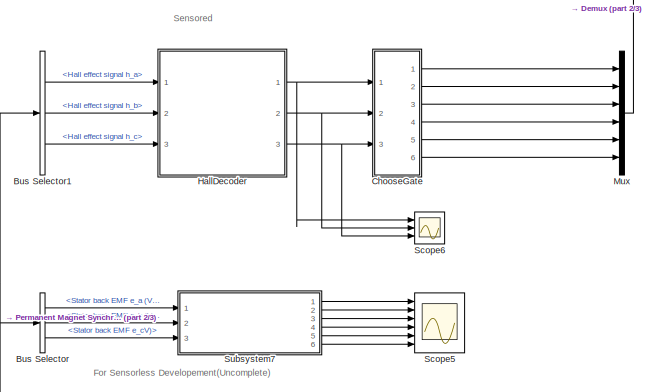
[diagram: root canvas - part 1/3, top right region]
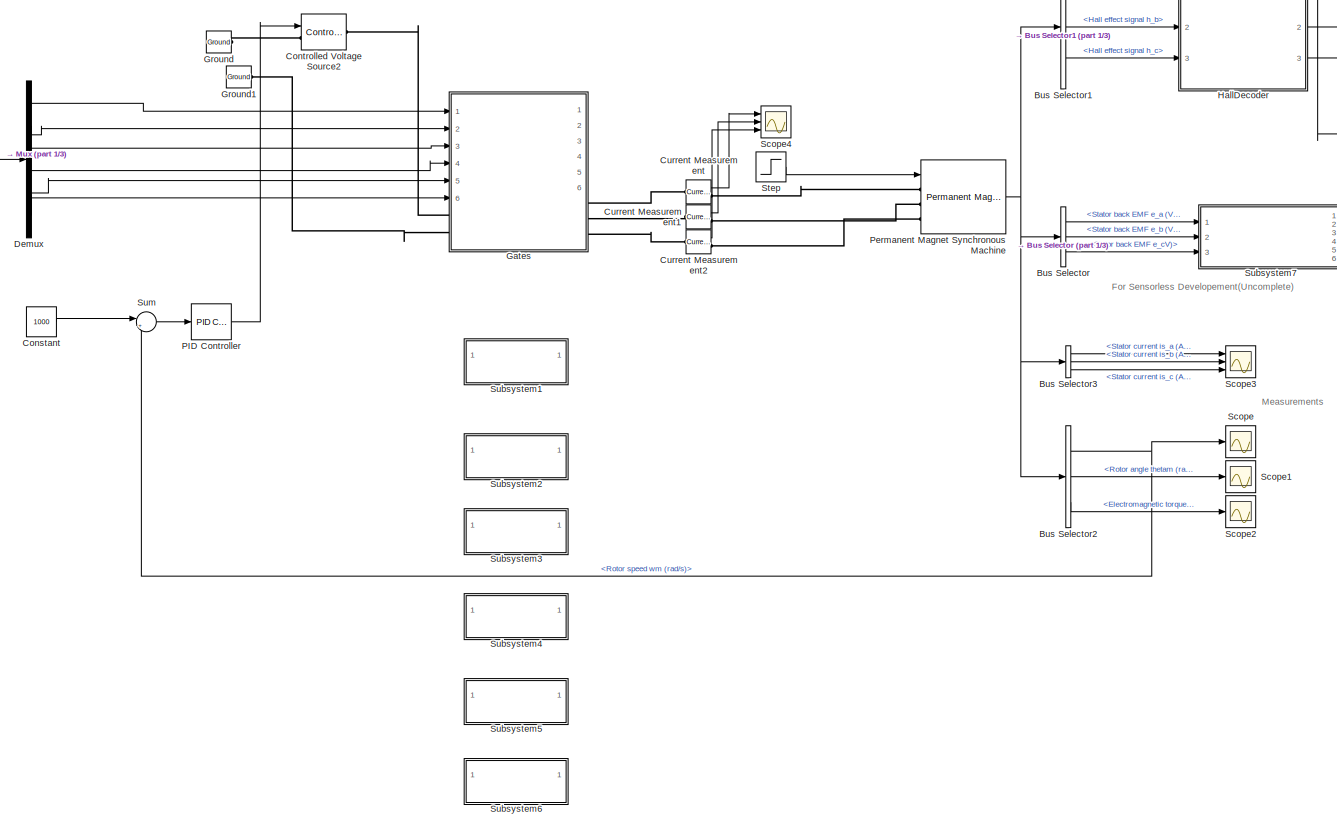
[diagram: root canvas - part 2/3, center side, full height]
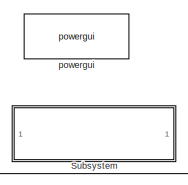
[diagram: root canvas - part 3/3, top left region]
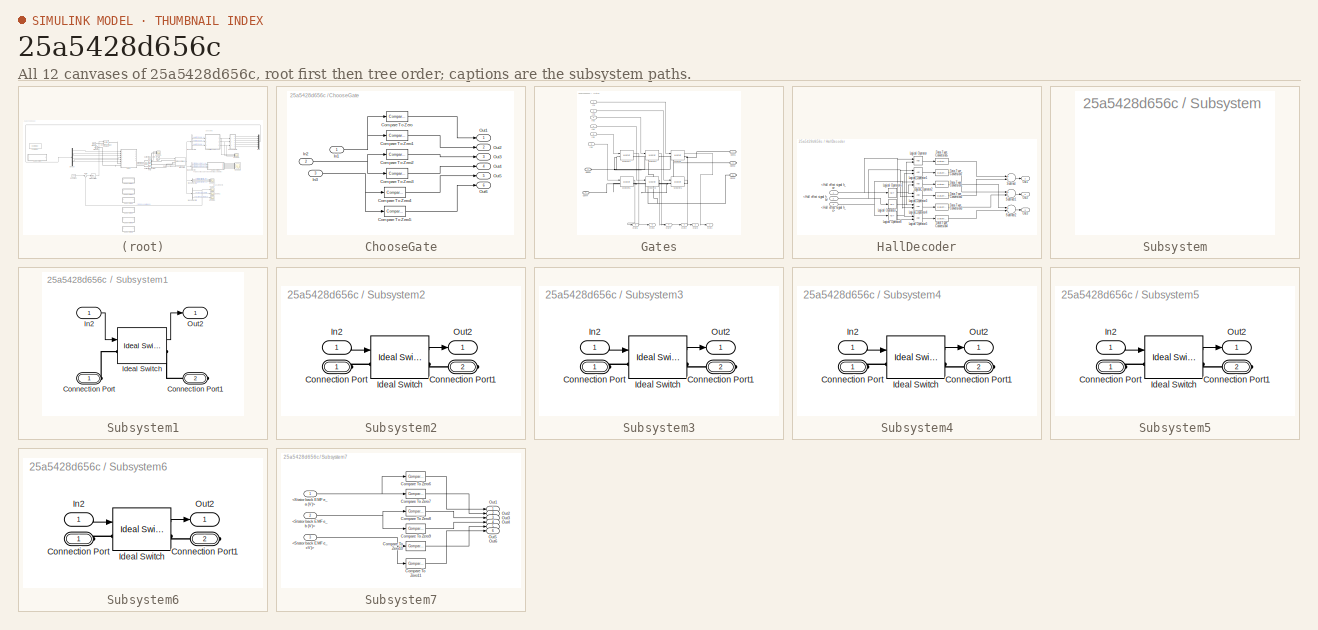
[diagram: thumbnail index - all 12 canvases of the model, root first then tree order]
MODEL slx_25a5428d656c
KIND model
CONFIG AbsTol = auto
CONFIG EnableMultiTasking = off
CONFIG FixedStep = auto
CONFIG MaxStep = 0.2
CONFIG MinStep = auto
CONFIG RelTol = 1e-4
CONFIG SampleTimeConstraint = Unconstrained
CONFIG Solver = ode4
CONFIG SolverName = ode4
CONFIG StartTime = 0.0
CONFIG StopTime = 2
BLOCK [BusSelector] Bus Selector
  OutputAsBus = off
  OutputSignals = Stator back EMF e_a (V),Stator back EMF e_b (V),Stator back EMF e_cV)
  Ports = [1, 3]
BLOCK [BusSelector] Bus Selector1
  OutputAsBus = off
  OutputSignals = Hall effect signal h_a,Hall effect signal h_b,Hall effect signal h_c
  Ports = [1, 3]
BLOCK [BusSelector] Bus Selector2
  OutputAsBus = off
  OutputSignals = Rotor speed wm (rad/s),Rotor angle thetam (rad),Electromagnetic torque Te (N*m)
  Ports = [1, 3]
BLOCK [BusSelector] Bus Selector3
  OutputAsBus = off
  OutputSignals = Stator current is_a (A),Stator current is_b (A),Stator current is_c (A)
  Ports = [1, 3]
BLOCK [SubSystem] ChooseGate
  Ports = [3, 6]
  RequestExecContextInheritance = off
BLOCK [Reference] ChooseGate/Compare To Zero  REF=simulink/Logic and Bit
Operations/Compare
To Zero
  Ports = [1, 1]
  SourceBlock = simulink/Logic and Bit\nOperations/Compare\nTo Zero
  SourceProductBaseCode = SL
  SourceProductName = Simulink
  SourceType = Compare To Zero
BLOCK [Reference] ChooseGate/Compare To Zero1  REF=simulink/Logic and Bit
Operations/Compare
To Zero
  Ports = [1, 1]
  SourceBlock = simulink/Logic and Bit\nOperations/Compare\nTo Zero
  SourceProductBaseCode = SL
  SourceProductName = Simulink
  SourceType = Compare To Zero
BLOCK [Reference] ChooseGate/Compare To Zero2  REF=simulink/Logic and Bit
Operations/Compare
To Zero
  Ports = [1, 1]
  SourceBlock = simulink/Logic and Bit\nOperations/Compare\nTo Zero
  SourceProductBaseCode = SL
  SourceProductName = Simulink
  SourceType = Compare To Zero
BLOCK [Reference] ChooseGate/Compare To Zero3  REF=simulink/Logic and Bit
Operations/Compare
To Zero
  Ports = [1, 1]
  SourceBlock = simulink/Logic and Bit\nOperations/Compare\nTo Zero
  SourceProductBaseCode = SL
  SourceProductName = Simulink
  SourceType = Compare To Zero
BLOCK [Reference] ChooseGate/Compare To Zero4  REF=simulink/Logic and Bit
Operations/Compare
To Zero
  Ports = [1, 1]
  SourceBlock = simulink/Logic and Bit\nOperations/Compare\nTo Zero
  SourceProductBaseCode = SL
  SourceProductName = Simulink
  SourceType = Compare To Zero
BLOCK [Reference] ChooseGate/Compare To Zero5  REF=simulink/Logic and Bit
Operations/Compare
To Zero
  Ports = [1, 1]
  SourceBlock = simulink/Logic and Bit\nOperations/Compare\nTo Zero
  SourceProductBaseCode = SL
  SourceProductName = Simulink
  SourceType = Compare To Zero
BLOCK [Inport] ChooseGate/In1
  IconDisplay = Port number
BLOCK [Inport] ChooseGate/In2
  IconDisplay = Port number
  Port = 2
BLOCK [Inport] ChooseGate/In3
  IconDisplay = Port number
  Port = 3
BLOCK [Outport] ChooseGate/Out1
  IconDisplay = Port number
BLOCK [Outport] ChooseGate/Out2
  IconDisplay = Port number
  Port = 2
BLOCK [Outport] ChooseGate/Out3
  IconDisplay = Port number
  Port = 3
BLOCK [Outport] ChooseGate/Out4
  IconDisplay = Port number
  Port = 4
BLOCK [Outport] ChooseGate/Out5
  IconDisplay = Port number
  Port = 5
BLOCK [Outport] ChooseGate/Out6
  IconDisplay = Port number
  Port = 6
BLOCK [Constant] Constant
  Value = 1000
BLOCK [Reference] Controlled Voltage Source2  REF=powerlib/Electrical
Sources/Controlled Voltage Source
  Ports = [1, 0, 0, 0, 0, 1, 1]
  SourceBlock = powerlib/Electrical\nSources/Controlled Voltage Source
  SourceProductBaseCode = PS
  SourceProductName = Simscape Power Systems
  SourceType = Controlled Voltage Source
BLOCK [Reference] Current Measurement  REF=powerlib/Measurements/Current Measurement
  Ports = [0, 1, 0, 0, 0, 1, 1]
  SourceBlock = powerlib/Measurements/Current Measurement
  SourceProductBaseCode = PS
  SourceProductName = Simscape Power Systems
  SourceType = Current Measurement
  UserDataPersistent = on
BLOCK [Reference] Current Measurement1  REF=powerlib/Measurements/Current Measurement
  Ports = [0, 1, 0, 0, 0, 1, 1]
  SourceBlock = powerlib/Measurements/Current Measurement
  SourceProductBaseCode = PS
  SourceProductName = Simscape Power Systems
  SourceType = Current Measurement
  UserDataPersistent = on
BLOCK [Reference] Current Measurement2  REF=powerlib/Measurements/Current Measurement
  Ports = [0, 1, 0, 0, 0, 1, 1]
  SourceBlock = powerlib/Measurements/Current Measurement
  SourceProductBaseCode = PS
  SourceProductName = Simscape Power Systems
  SourceType = Current Measurement
  UserDataPersistent = on
BLOCK [Demux] Demux
  DisplayOption = bar
  Outputs = 6
  Ports = [1, 6]
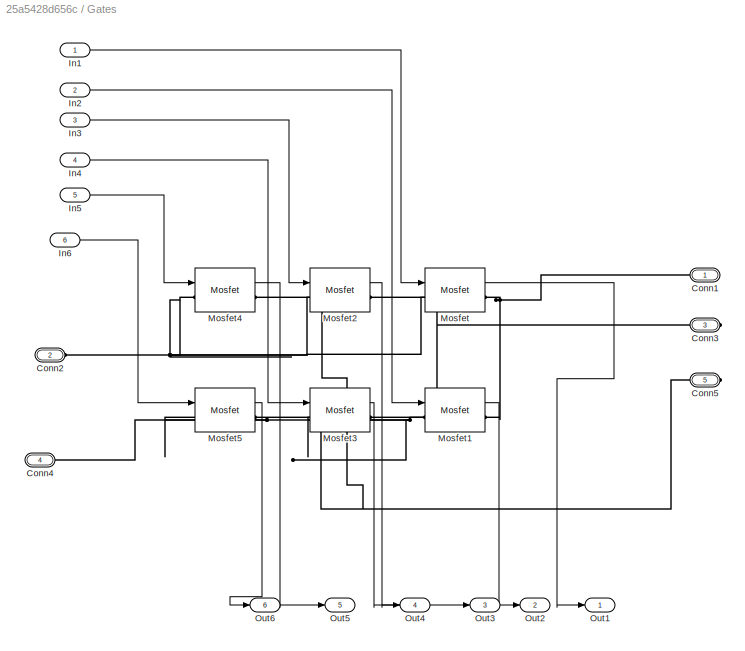
BLOCK [SubSystem] Gates
  Ports = [6, 6, 0, 0, 0, 2, 3]
  RequestExecContextInheritance = off
BLOCK [PMIOPort] Gates/Conn1
  Side = Right
BLOCK [PMIOPort] Gates/Conn2
  Port = 2
  Side = Left
BLOCK [PMIOPort] Gates/Conn3
  Port = 3
  Side = Right
BLOCK [PMIOPort] Gates/Conn4
  Port = 4
  Side = Left
BLOCK [PMIOPort] Gates/Conn5
  Port = 5
  Side = Right
BLOCK [Inport] Gates/In1
  IconDisplay = Port number
BLOCK [Inport] Gates/In2
  IconDisplay = Port number
  Port = 2
BLOCK [Inport] Gates/In3
  IconDisplay = Port number
  Port = 3
BLOCK [Inport] Gates/In4
  IconDisplay = Port number
  Port = 4
BLOCK [Inport] Gates/In5
  IconDisplay = Port number
  Port = 5
BLOCK [Inport] Gates/In6
  IconDisplay = Port number
  Port = 6
BLOCK [Reference] Gates/Mosfet  REF=powerlib/Power
Electronics/Mosfet
  Ports = [1, 1, 0, 0, 0, 1, 1]
  SourceBlock = powerlib/Power\nElectronics/Mosfet
  SourceProductBaseCode = PS
  SourceProductName = Simscape Power Systems
  SourceType = Mosfet
BLOCK [Reference] Gates/Mosfet1  REF=powerlib/Power
Electronics/Mosfet
  Ports = [1, 1, 0, 0, 0, 1, 1]
  SourceBlock = powerlib/Power\nElectronics/Mosfet
  SourceProductBaseCode = PS
  SourceProductName = Simscape Power Systems
  SourceType = Mosfet
BLOCK [Reference] Gates/Mosfet2  REF=powerlib/Power
Electronics/Mosfet
  Ports = [1, 1, 0, 0, 0, 1, 1]
  SourceBlock = powerlib/Power\nElectronics/Mosfet
  SourceProductBaseCode = PS
  SourceProductName = Simscape Power Systems
  SourceType = Mosfet
BLOCK [Reference] Gates/Mosfet3  REF=powerlib/Power
Electronics/Mosfet
  Ports = [1, 1, 0, 0, 0, 1, 1]
  SourceBlock = powerlib/Power\nElectronics/Mosfet
  SourceProductBaseCode = PS
  SourceProductName = Simscape Power Systems
  SourceType = Mosfet
BLOCK [Reference] Gates/Mosfet4  REF=powerlib/Power
Electronics/Mosfet
  Ports = [1, 1, 0, 0, 0, 1, 1]
  SourceBlock = powerlib/Power\nElectronics/Mosfet
  SourceProductBaseCode = PS
  SourceProductName = Simscape Power Systems
  SourceType = Mosfet
BLOCK [Reference] Gates/Mosfet5  REF=powerlib/Power
Electronics/Mosfet
  Ports = [1, 1, 0, 0, 0, 1, 1]
  SourceBlock = powerlib/Power\nElectronics/Mosfet
  SourceProductBaseCode = PS
  SourceProductName = Simscape Power Systems
  SourceType = Mosfet
BLOCK [Outport] Gates/Out1
  IconDisplay = Port number
BLOCK [Outport] Gates/Out2
  IconDisplay = Port number
  Port = 2
BLOCK [Outport] Gates/Out3
  IconDisplay = Port number
  Port = 3
BLOCK [Outport] Gates/Out4
  IconDisplay = Port number
  Port = 4
BLOCK [Outport] Gates/Out5
  IconDisplay = Port number
  Port = 5
BLOCK [Outport] Gates/Out6
  IconDisplay = Port number
  Port = 6
BLOCK [Reference] Ground  REF=powerlib/Elements/Ground
  Ports = [0, 0, 0, 0, 0, 1]
  SourceBlock = powerlib/Elements/Ground
  SourceProductBaseCode = PS
  SourceProductName = Simscape Power Systems
  SourceType = Ground
BLOCK [Reference] Ground1  REF=powerlib/Elements/Ground
  Ports = [0, 0, 0, 0, 0, 1]
  SourceBlock = powerlib/Elements/Ground
  SourceProductBaseCode = PS
  SourceProductName = Simscape Power Systems
  SourceType = Ground
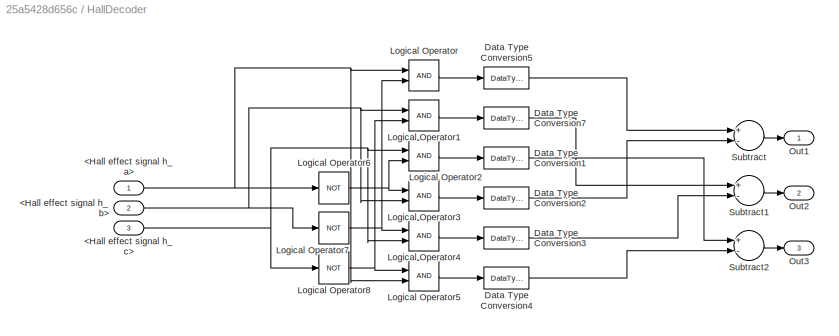
BLOCK [SubSystem] HallDecoder
  Ports = [3, 3]
  RequestExecContextInheritance = off
BLOCK [Inport] HallDecoder/<Hall effect signal h_a>
  IconDisplay = Port number
BLOCK [Inport] HallDecoder/<Hall effect signal h_b>
  IconDisplay = Port number
  Port = 2
BLOCK [Inport] HallDecoder/<Hall effect signal h_c>
  IconDisplay = Port number
  Port = 3
BLOCK [DataTypeConversion] HallDecoder/Data Type Conversion1
  RndMeth = Floor
  SaturateOnIntegerOverflow = off
BLOCK [DataTypeConversion] HallDecoder/Data Type Conversion2
  RndMeth = Floor
  SaturateOnIntegerOverflow = off
BLOCK [DataTypeConversion] HallDecoder/Data Type Conversion3
  RndMeth = Floor
  SaturateOnIntegerOverflow = off
BLOCK [DataTypeConversion] HallDecoder/Data Type Conversion4
  RndMeth = Floor
  SaturateOnIntegerOverflow = off
BLOCK [DataTypeConversion] HallDecoder/Data Type Conversion5
  RndMeth = Floor
  SaturateOnIntegerOverflow = off
BLOCK [DataTypeConversion] HallDecoder/Data Type Conversion7
  RndMeth = Floor
  SaturateOnIntegerOverflow = off
BLOCK [Logic] HallDecoder/Logical Operator
  AllPortsSameDT = off
  OutDataTypeStr = boolean
  Ports = [2, 1]
BLOCK [Logic] HallDecoder/Logical Operator1
  AllPortsSameDT = off
  OutDataTypeStr = boolean
  Ports = [2, 1]
BLOCK [Logic] HallDecoder/Logical Operator2
  AllPortsSameDT = off
  OutDataTypeStr = boolean
  Ports = [2, 1]
BLOCK [Logic] HallDecoder/Logical Operator3
  AllPortsSameDT = off
  OutDataTypeStr = boolean
  Ports = [2, 1]
BLOCK [Logic] HallDecoder/Logical Operator4
  AllPortsSameDT = off
  OutDataTypeStr = boolean
  Ports = [2, 1]
BLOCK [Logic] HallDecoder/Logical Operator5
  AllPortsSameDT = off
  OutDataTypeStr = boolean
  Ports = [2, 1]
BLOCK [Logic] HallDecoder/Logical Operator6
  AllPortsSameDT = off
  Operator = NOT
  OutDataTypeStr = boolean
  Ports = [1, 1]
BLOCK [Logic] HallDecoder/Logical Operator7
  AllPortsSameDT = off
  Operator = NOT
  OutDataTypeStr = boolean
  Ports = [1, 1]
BLOCK [Logic] HallDecoder/Logical Operator8
  AllPortsSameDT = off
  Operator = NOT
  OutDataTypeStr = boolean
  Ports = [1, 1]
BLOCK [Outport] HallDecoder/Out1
  IconDisplay = Port number
BLOCK [Outport] HallDecoder/Out2
  IconDisplay = Port number
  Port = 2
BLOCK [Outport] HallDecoder/Out3
  IconDisplay = Port number
  Port = 3
BLOCK [Sum] HallDecoder/Subtract
  InputSameDT = off
  Inputs = +-
  OutDataTypeStr = Inherit: Inherit via internal rule
  Ports = [2, 1]
  SaturateOnIntegerOverflow = off
BLOCK [Sum] HallDecoder/Subtract1
  InputSameDT = off
  Inputs = +-
  OutDataTypeStr = Inherit: Inherit via internal rule
  Ports = [2, 1]
  SaturateOnIntegerOverflow = off
BLOCK [Sum] HallDecoder/Subtract2
  InputSameDT = off
  Inputs = +-
  OutDataTypeStr = Inherit: Inherit via internal rule
  Ports = [2, 1]
  SaturateOnIntegerOverflow = off
BLOCK [Mux] Mux
  DisplayOption = bar
  Inputs = 6
  Ports = [6, 1]
BLOCK [Reference] PID Controller  REF=simulink/Continuous/PID Controller
  Ports = [1, 1]
  SourceBlock = simulink/Continuous/PID Controller
  SourceProductBaseCode = SL
  SourceProductName = Simulink
  SourceType = PID 1dof
BLOCK [Reference] Permanent Magnet Synchronous Machine  REF=powerlib/Machines/Permanent Magnet
Synchronous Machine
  Ports = [1, 1, 0, 0, 0, 3]
  SourceBlock = powerlib/Machines/Permanent Magnet\nSynchronous Machine
  SourceProductBaseCode = PS
  SourceProductName = Simscape Power Systems
  SourceType = Permanent Magnet Synchronous Machine
BLOCK [Scope] Scope
  Floating = off
  NumInputPorts = 1
  Ports = [1]
  ScopeSpecificationString = Simulink.scopes.TimeScopeBlockCfg('CurrentConfiguration', extmgr.ConfigurationSet(extmgr.Configuration('Core','General UI',true),extmgr.Configuration('Core','Source UI',true),extmgr.Configuration('Sources','WiredSimulink',true),extmgr.Configuration('Visuals','Time Domain',true,'SerializedDisplays',{struct('MinYLimReal','-31433081322051243000686446954332904352752270249986256670108036528867521983913...<+2171ch>
BLOCK [Scope] Scope1
  Floating = off
  NumInputPorts = 1
  Ports = [1]
  ScopeSpecificationString = Simulink.scopes.TimeScopeBlockCfg('CurrentConfiguration', extmgr.ConfigurationSet(extmgr.Configuration('Core','General UI',true),extmgr.Configuration('Core','Source UI',true),extmgr.Configuration('Sources','WiredSimulink',true,'DataLoggingVariableName','ScopeData1'),extmgr.Configuration('Visuals','Time Domain',true,'SerializedDisplays',{struct('MinYLimReal','-15.0305','MaxYLimReal','1.67006','YLab...<+1385ch>
BLOCK [Scope] Scope2
  Floating = off
  NumInputPorts = 1
  Ports = [1]
  ScopeSpecificationString = Simulink.scopes.TimeScopeBlockCfg('CurrentConfiguration', extmgr.ConfigurationSet(extmgr.Configuration('Core','General UI',true),extmgr.Configuration('Core','Source UI',true),extmgr.Configuration('Sources','WiredSimulink',true,'DataLoggingVariableName','ScopeData2'),extmgr.Configuration('Visuals','Time Domain',true,'SerializedDisplays',{struct('MinYLimReal','-21.02306','MaxYLimReal','11.22931','YL...<+1398ch>
BLOCK [Scope] Scope3
  Floating = off
  NumInputPorts = 3
  Ports = [3]
  ScopeSpecificationString = Simulink.scopes.TimeScopeBlockCfg('CurrentConfiguration', extmgr.ConfigurationSet(extmgr.Configuration('Core','General UI',true),extmgr.Configuration('Core','Source UI',true),extmgr.Configuration('Sources','WiredSimulink',true,'DataLoggingVariableName','ScopeData3'),extmgr.Configuration('Visuals','Time Domain',true,'SerializedDisplays',{struct('MinYLimReal','-31.94854','MaxYLimReal','19.22847','YL...<+1469ch>
BLOCK [Scope] Scope4
  Floating = off
  NumInputPorts = 3
  Ports = [3]
  ScopeSpecificationString = Simulink.scopes.TimeScopeBlockCfg('CurrentConfiguration', extmgr.ConfigurationSet(extmgr.Configuration('Core','General UI',true),extmgr.Configuration('Core','Source UI',true),extmgr.Configuration('Sources','WiredSimulink',true,'DataLoggingVariableName','ScopeData4'),extmgr.Configuration('Visuals','Time Domain',true,'SerializedDisplays',{struct('MinYLimReal','-31.94854','MaxYLimReal','19.22847','YL...<+1453ch>
BLOCK [Scope] Scope5
  Floating = off
  NumInputPorts = 6
  Ports = [6]
  ScopeSpecificationString = Simulink.scopes.TimeScopeBlockCfg('CurrentConfiguration', extmgr.ConfigurationSet(extmgr.Configuration('Core','General UI',true),extmgr.Configuration('Core','Source UI',true),extmgr.Configuration('Sources','WiredSimulink',true,'DataLoggingVariableName','ScopeData5'),extmgr.Configuration('Visuals','Time Domain',true,'SerializedDisplays',{struct('MinYLimReal','0.32622','MaxYLimReal','1.125','YLabelR...<+1487ch>
BLOCK [Scope] Scope6
  Floating = off
  NumInputPorts = 3
  Ports = [3]
  ScopeSpecificationString = Simulink.scopes.TimeScopeBlockCfg('CurrentConfiguration', extmgr.ConfigurationSet(extmgr.Configuration('Core','General UI',true),extmgr.Configuration('Core','Source UI',true),extmgr.Configuration('Sources','WiredSimulink',true,'DataLoggingVariableName','ScopeData6'),extmgr.Configuration('Visuals','Time Domain',true,'SerializedDisplays',{struct('MinYLimReal','-1.25','MaxYLimReal','1.25','YLabelReal...<+1459ch>
BLOCK [Step] Step
  After = 2
  SampleTime = 0
  Time = 0.01
BLOCK [SubSystem] Subsystem
  OpenFcn = open_system('power_new_palette')
  Ports = []
  RequestExecContextInheritance = off
  ShowPortLabels = none
BLOCK [SubSystem] Subsystem1
  Ports = [1, 1, 0, 0, 0, 1, 1]
  RequestExecContextInheritance = off
BLOCK [PMIOPort] Subsystem1/Connection Port
  Side = Left
BLOCK [PMIOPort] Subsystem1/Connection Port1
  Port = 2
  Side = Right
BLOCK [Reference] Subsystem1/Ideal Switch  REF=powerlib/Power
Electronics/Ideal Switch
  Ports = [1, 1, 0, 0, 0, 1, 1]
  SourceBlock = powerlib/Power\nElectronics/Ideal Switch
  SourceProductBaseCode = PS
  SourceProductName = Simscape Power Systems
  SourceType = Ideal Switch
BLOCK [Inport] Subsystem1/In2
  IconDisplay = Port number
BLOCK [Outport] Subsystem1/Out2
  IconDisplay = Port number
BLOCK [SubSystem] Subsystem2
  Ports = [1, 1, 0, 0, 0, 1, 1]
  RequestExecContextInheritance = off
BLOCK [PMIOPort] Subsystem2/Connection Port
  Side = Left
BLOCK [PMIOPort] Subsystem2/Connection Port1
  Port = 2
  Side = Right
BLOCK [Reference] Subsystem2/Ideal Switch  REF=powerlib/Power
Electronics/Ideal Switch
  Ports = [1, 1, 0, 0, 0, 1, 1]
  SourceBlock = powerlib/Power\nElectronics/Ideal Switch
  SourceProductBaseCode = PS
  SourceProductName = Simscape Power Systems
  SourceType = Ideal Switch
BLOCK [Inport] Subsystem2/In2
  IconDisplay = Port number
BLOCK [Outport] Subsystem2/Out2
  IconDisplay = Port number
BLOCK [SubSystem] Subsystem3
  Ports = [1, 1, 0, 0, 0, 1, 1]
  RequestExecContextInheritance = off
BLOCK [PMIOPort] Subsystem3/Connection Port
  Side = Left
BLOCK [PMIOPort] Subsystem3/Connection Port1
  Port = 2
  Side = Right
BLOCK [Reference] Subsystem3/Ideal Switch  REF=powerlib/Power
Electronics/Ideal Switch
  Ports = [1, 1, 0, 0, 0, 1, 1]
  SourceBlock = powerlib/Power\nElectronics/Ideal Switch
  SourceProductBaseCode = PS
  SourceProductName = Simscape Power Systems
  SourceType = Ideal Switch
BLOCK [Inport] Subsystem3/In2
  IconDisplay = Port number
BLOCK [Outport] Subsystem3/Out2
  IconDisplay = Port number
BLOCK [SubSystem] Subsystem4
  Ports = [1, 1, 0, 0, 0, 1, 1]
  RequestExecContextInheritance = off
BLOCK [PMIOPort] Subsystem4/Connection Port
  Side = Left
BLOCK [PMIOPort] Subsystem4/Connection Port1
  Port = 2
  Side = Right
BLOCK [Reference] Subsystem4/Ideal Switch  REF=powerlib/Power
Electronics/Ideal Switch
  Ports = [1, 1, 0, 0, 0, 1, 1]
  SourceBlock = powerlib/Power\nElectronics/Ideal Switch
  SourceProductBaseCode = PS
  SourceProductName = Simscape Power Systems
  SourceType = Ideal Switch
BLOCK [Inport] Subsystem4/In2
  IconDisplay = Port number
BLOCK [Outport] Subsystem4/Out2
  IconDisplay = Port number
BLOCK [SubSystem] Subsystem5
  Ports = [1, 1, 0, 0, 0, 1, 1]
  RequestExecContextInheritance = off
BLOCK [PMIOPort] Subsystem5/Connection Port
  Side = Left
BLOCK [PMIOPort] Subsystem5/Connection Port1
  Port = 2
  Side = Right
BLOCK [Reference] Subsystem5/Ideal Switch  REF=powerlib/Power
Electronics/Ideal Switch
  Ports = [1, 1, 0, 0, 0, 1, 1]
  SourceBlock = powerlib/Power\nElectronics/Ideal Switch
  SourceProductBaseCode = PS
  SourceProductName = Simscape Power Systems
  SourceType = Ideal Switch
BLOCK [Inport] Subsystem5/In2
  IconDisplay = Port number
BLOCK [Outport] Subsystem5/Out2
  IconDisplay = Port number
BLOCK [SubSystem] Subsystem6
  Ports = [1, 1, 0, 0, 0, 1, 1]
  RequestExecContextInheritance = off
BLOCK [PMIOPort] Subsystem6/Connection Port
  Side = Left
BLOCK [PMIOPort] Subsystem6/Connection Port1
  Port = 2
  Side = Right
BLOCK [Reference] Subsystem6/Ideal Switch  REF=powerlib/Power
Electronics/Ideal Switch
  Ports = [1, 1, 0, 0, 0, 1, 1]
  SourceBlock = powerlib/Power\nElectronics/Ideal Switch
  SourceProductBaseCode = PS
  SourceProductName = Simscape Power Systems
  SourceType = Ideal Switch
BLOCK [Inport] Subsystem6/In2
  IconDisplay = Port number
BLOCK [Outport] Subsystem6/Out2
  IconDisplay = Port number
BLOCK [SubSystem] Subsystem7
  Ports = [3, 6]
  RequestExecContextInheritance = off
BLOCK [Inport] Subsystem7/<Stator back EMF e_a (V)>
  IconDisplay = Port number
BLOCK [Inport] Subsystem7/<Stator back EMF e_b (V)>
  IconDisplay = Port number
  Port = 2
BLOCK [Inport] Subsystem7/<Stator back EMF e_cV)>
  IconDisplay = Port number
  Port = 3
BLOCK [Reference] Subsystem7/Compare To Zero10  REF=simulink/Logic and Bit
Operations/Compare
To Zero
  Ports = [1, 1]
  SourceBlock = simulink/Logic and Bit\nOperations/Compare\nTo Zero
  SourceProductBaseCode = SL
  SourceProductName = Simulink
  SourceType = Compare To Zero
BLOCK [Reference] Subsystem7/Compare To Zero11  REF=simulink/Logic and Bit
Operations/Compare
To Zero
  Ports = [1, 1]
  SourceBlock = simulink/Logic and Bit\nOperations/Compare\nTo Zero
  SourceProductBaseCode = SL
  SourceProductName = Simulink
  SourceType = Compare To Zero
BLOCK [Reference] Subsystem7/Compare To Zero6  REF=simulink/Logic and Bit
Operations/Compare
To Zero
  Ports = [1, 1]
  SourceBlock = simulink/Logic and Bit\nOperations/Compare\nTo Zero
  SourceProductBaseCode = SL
  SourceProductName = Simulink
  SourceType = Compare To Zero
BLOCK [Reference] Subsystem7/Compare To Zero7  REF=simulink/Logic and Bit
Operations/Compare
To Zero
  Ports = [1, 1]
  SourceBlock = simulink/Logic and Bit\nOperations/Compare\nTo Zero
  SourceProductBaseCode = SL
  SourceProductName = Simulink
  SourceType = Compare To Zero
BLOCK [Reference] Subsystem7/Compare To Zero8  REF=simulink/Logic and Bit
Operations/Compare
To Zero
  Ports = [1, 1]
  SourceBlock = simulink/Logic and Bit\nOperations/Compare\nTo Zero
  SourceProductBaseCode = SL
  SourceProductName = Simulink
  SourceType = Compare To Zero
BLOCK [Reference] Subsystem7/Compare To Zero9  REF=simulink/Logic and Bit
Operations/Compare
To Zero
  Ports = [1, 1]
  SourceBlock = simulink/Logic and Bit\nOperations/Compare\nTo Zero
  SourceProductBaseCode = SL
  SourceProductName = Simulink
  SourceType = Compare To Zero
BLOCK [Outport] Subsystem7/Out1
  IconDisplay = Port number
BLOCK [Outport] Subsystem7/Out2
  IconDisplay = Port number
  Port = 2
BLOCK [Outport] Subsystem7/Out3
  IconDisplay = Port number
  Port = 3
BLOCK [Outport] Subsystem7/Out4
  IconDisplay = Port number
  Port = 4
BLOCK [Outport] Subsystem7/Out5
  IconDisplay = Port number
  Port = 5
BLOCK [Outport] Subsystem7/Out6
  IconDisplay = Port number
  Port = 6
BLOCK [Sum] Sum
  IconShape = round
  InputSameDT = off
  Inputs = |+-
  OutDataTypeStr = Inherit: Inherit via internal rule
  Ports = [2, 1]
  SaturateOnIntegerOverflow = off
BLOCK [Reference] powergui  REF=powerlib/powergui
  Ports = []
  Priority = 1
  SourceBlock = powerlib/powergui
  SourceProductBaseCode = PS
  SourceProductName = Simscape Power Systems
  SourceType = PSB option menu block
ANNOTATION (root): For Sensorless Developement(Uncomplete)
ANNOTATION (root): Measurements
ANNOTATION (root): Sensored
LINE Bus Selector1:1 -> HallDecoder:1
LINE Bus Selector1:2 -> HallDecoder:2
LINE Bus Selector1:3 -> HallDecoder:3
NET Bus Selector2:1 -> Scope:1, Sum:2
LINE Bus Selector2:2 -> Scope1:1
LINE Bus Selector2:3 -> Scope2:1
LINE Bus Selector3:1 -> Scope3:1
LINE Bus Selector3:2 -> Scope3:2
LINE Bus Selector3:3 -> Scope3:3
LINE Bus Selector:1 -> Subsystem7:1
LINE Bus Selector:2 -> Subsystem7:2
LINE Bus Selector:3 -> Subsystem7:3
LINE ChooseGate/Compare To Zero1:1 -> ChooseGate/Out2:1
LINE ChooseGate/Compare To Zero2:1 -> ChooseGate/Out3:1
LINE ChooseGate/Compare To Zero3:1 -> ChooseGate/Out4:1
LINE ChooseGate/Compare To Zero4:1 -> ChooseGate/Out5:1
LINE ChooseGate/Compare To Zero5:1 -> ChooseGate/Out6:1
LINE ChooseGate/Compare To Zero:1 -> ChooseGate/Out1:1
NET ChooseGate/In1:1 -> ChooseGate/Compare To Zero1:1, ChooseGate/Compare To Zero:1
NET ChooseGate/In2:1 -> ChooseGate/Compare To Zero2:1, ChooseGate/Compare To Zero3:1
NET ChooseGate/In3:1 -> ChooseGate/Compare To Zero4:1, ChooseGate/Compare To Zero5:1
LINE ChooseGate:1 -> Mux:1
LINE ChooseGate:2 -> Mux:2
LINE ChooseGate:3 -> Mux:3
LINE ChooseGate:4 -> Mux:4
LINE ChooseGate:5 -> Mux:5
LINE ChooseGate:6 -> Mux:6
LINE Constant:1 -> Sum:1
LINE Current Measurement1:1 -> Scope4:2
LINE Current Measurement2:1 -> Scope4:3
LINE Current Measurement:1 -> Scope4:1
LINE Demux:1 -> Gates:1
LINE Demux:2 -> Gates:2
LINE Demux:3 -> Gates:3
LINE Demux:4 -> Gates:4
LINE Demux:5 -> Gates:5
LINE Demux:6 -> Gates:6
LINE Gates/In1:1 -> Gates/Mosfet:1
LINE Gates/In2:1 -> Gates/Mosfet1:1
LINE Gates/In3:1 -> Gates/Mosfet2:1
LINE Gates/In4:1 -> Gates/Mosfet3:1
LINE Gates/In5:1 -> Gates/Mosfet4:1
LINE Gates/In6:1 -> Gates/Mosfet5:1
LINE Gates/Mosfet1:1 -> Gates/Out2:1
LINE Gates/Mosfet2:1 -> Gates/Out3:1
LINE Gates/Mosfet3:1 -> Gates/Out4:1
LINE Gates/Mosfet4:1 -> Gates/Out5:1
LINE Gates/Mosfet5:1 -> Gates/Out6:1
LINE Gates/Mosfet:1 -> Gates/Out1:1
NET HallDecoder/<Hall effect signal h_a>:1 -> HallDecoder/Logical Operator5:2, HallDecoder/Logical Operator6:1, HallDecoder/Logical Operator:1
NET HallDecoder/<Hall effect signal h_b>:1 -> HallDecoder/Logical Operator1:1, HallDecoder/Logical Operator3:2, HallDecoder/Logical Operator7:1
NET HallDecoder/<Hall effect signal h_c>:1 -> HallDecoder/Logical Operator2:1, HallDecoder/Logical Operator4:2, HallDecoder/Logical Operator8:1
LINE HallDecoder/Data Type Conversion1:1 -> HallDecoder/Subtract2:1
LINE HallDecoder/Data Type Conversion2:1 -> HallDecoder/Subtract:2
LINE HallDecoder/Data Type Conversion3:1 -> HallDecoder/Subtract1:2
LINE HallDecoder/Data Type Conversion4:1 -> HallDecoder/Subtract2:2
LINE HallDecoder/Data Type Conversion5:1 -> HallDecoder/Subtract:1
LINE HallDecoder/Data Type Conversion7:1 -> HallDecoder/Subtract1:1
LINE HallDecoder/Logical Operator1:1 -> HallDecoder/Data Type Conversion7:1
LINE HallDecoder/Logical Operator2:1 -> HallDecoder/Data Type Conversion1:1
LINE HallDecoder/Logical Operator3:1 -> HallDecoder/Data Type Conversion2:1
LINE HallDecoder/Logical Operator4:1 -> HallDecoder/Data Type Conversion3:1
LINE HallDecoder/Logical Operator5:1 -> HallDecoder/Data Type Conversion4:1
NET HallDecoder/Logical Operator6:1 -> HallDecoder/Logical Operator2:2, HallDecoder/Logical Operator3:1
NET HallDecoder/Logical Operator7:1 -> HallDecoder/Logical Operator4:1, HallDecoder/Logical Operator:2
NET HallDecoder/Logical Operator8:1 -> HallDecoder/Logical Operator1:2, HallDecoder/Logical Operator5:1
LINE HallDecoder/Logical Operator:1 -> HallDecoder/Data Type Conversion5:1
LINE HallDecoder/Subtract1:1 -> HallDecoder/Out2:1
LINE HallDecoder/Subtract2:1 -> HallDecoder/Out3:1
LINE HallDecoder/Subtract:1 -> HallDecoder/Out1:1
NET HallDecoder:1 -> ChooseGate:1, Scope6:1
NET HallDecoder:2 -> ChooseGate:2, Scope6:2
NET HallDecoder:3 -> ChooseGate:3, Scope6:3
LINE Mux:1 -> Demux:1
LINE PID Controller:1 -> Controlled Voltage Source2:1
NET Permanent Magnet Synchronous Machine:1 -> Bus Selector1:1, Bus Selector2:1, Bus Selector3:1, Bus Selector:1
LINE Step:1 -> Permanent Magnet Synchronous Machine:1
LINE Subsystem1/Ideal Switch:1 -> Subsystem1/Out2:1
LINE Subsystem1/In2:1 -> Subsystem1/Ideal Switch:1
LINE Subsystem2/Ideal Switch:1 -> Subsystem2/Out2:1
LINE Subsystem2/In2:1 -> Subsystem2/Ideal Switch:1
LINE Subsystem3/Ideal Switch:1 -> Subsystem3/Out2:1
LINE Subsystem3/In2:1 -> Subsystem3/Ideal Switch:1
LINE Subsystem4/Ideal Switch:1 -> Subsystem4/Out2:1
LINE Subsystem4/In2:1 -> Subsystem4/Ideal Switch:1
LINE Subsystem5/Ideal Switch:1 -> Subsystem5/Out2:1
LINE Subsystem5/In2:1 -> Subsystem5/Ideal Switch:1
LINE Subsystem6/Ideal Switch:1 -> Subsystem6/Out2:1
LINE Subsystem6/In2:1 -> Subsystem6/Ideal Switch:1
NET Subsystem7/<Stator back EMF e_a (V)>:1 -> Subsystem7/Compare To Zero6:1, Subsystem7/Compare To Zero7:1
NET Subsystem7/<Stator back EMF e_b (V)>:1 -> Subsystem7/Compare To Zero8:1, Subsystem7/Compare To Zero9:1
NET Subsystem7/<Stator back EMF e_cV)>:1 -> Subsystem7/Compare To Zero10:1, Subsystem7/Compare To Zero11:1
LINE Subsystem7/Compare To Zero10:1 -> Subsystem7/Out5:1
LINE Subsystem7/Compare To Zero11:1 -> Subsystem7/Out6:1
LINE Subsystem7/Compare To Zero6:1 -> Subsystem7/Out1:1
LINE Subsystem7/Compare To Zero7:1 -> Subsystem7/Out2:1
LINE Subsystem7/Compare To Zero8:1 -> Subsystem7/Out3:1
LINE Subsystem7/Compare To Zero9:1 -> Subsystem7/Out4:1
LINE Subsystem7:1 -> Scope5:1
LINE Subsystem7:2 -> Scope5:2
LINE Subsystem7:3 -> Scope5:3
LINE Subsystem7:4 -> Scope5:4
LINE Subsystem7:5 -> Scope5:5
LINE Subsystem7:6 -> Scope5:6
LINE Sum:1 -> PID Controller:1
PLINE Controlled Voltage Source2:LConn1 -- Ground:LConn1
PLINE Controlled Voltage Source2:RConn1 -- Gates:LConn1
PLINE Current Measurement1:LConn1 -- Gates:RConn2
PLINE Current Measurement1:RConn1 -- Permanent Magnet Synchronous Machine:LConn2
PLINE Current Measurement2:LConn1 -- Gates:RConn3
PLINE Current Measurement2:RConn1 -- Permanent Magnet Synchronous Machine:LConn3
PLINE Current Measurement:LConn1 -- Gates:RConn1
PLINE Current Measurement:RConn1 -- Permanent Magnet Synchronous Machine:LConn1
PNET net1: Gates/Conn1:RConn1 -- Gates/Mosfet1:RConn1 -- Gates/Mosfet:RConn1
PNET net2: Gates/Conn2:RConn1 -- Gates/Mosfet2:LConn1 -- Gates/Mosfet4:LConn1 -- Gates/Mosfet:LConn1
PNET net3: Gates/Conn3:RConn1 -- Gates/Mosfet2:RConn1 -- Gates/Mosfet3:RConn1
PNET net4: Gates/Conn4:RConn1 -- Gates/Mosfet1:LConn1 -- Gates/Mosfet3:LConn1 -- Gates/Mosfet5:LConn1
PNET net5: Gates/Conn5:RConn1 -- Gates/Mosfet4:RConn1 -- Gates/Mosfet5:RConn1
PLINE Gates:LConn2 -- Ground1:LConn1
PLINE Subsystem1/Connection Port1:RConn1 -- Subsystem1/Ideal Switch:RConn1
PLINE Subsystem1/Connection Port:RConn1 -- Subsystem1/Ideal Switch:LConn1
PLINE Subsystem2/Connection Port1:RConn1 -- Subsystem2/Ideal Switch:RConn1
PLINE Subsystem2/Connection Port:RConn1 -- Subsystem2/Ideal Switch:LConn1
PLINE Subsystem3/Connection Port1:RConn1 -- Subsystem3/Ideal Switch:RConn1
PLINE Subsystem3/Connection Port:RConn1 -- Subsystem3/Ideal Switch:LConn1
PLINE Subsystem4/Connection Port1:RConn1 -- Subsystem4/Ideal Switch:RConn1
PLINE Subsystem4/Connection Port:RConn1 -- Subsystem4/Ideal Switch:LConn1
PLINE Subsystem5/Connection Port1:RConn1 -- Subsystem5/Ideal Switch:RConn1
PLINE Subsystem5/Connection Port:RConn1 -- Subsystem5/Ideal Switch:LConn1
PLINE Subsystem6/Connection Port1:RConn1 -- Subsystem6/Ideal Switch:RConn1
PLINE Subsystem6/Connection Port:RConn1 -- Subsystem6/Ideal Switch:LConn1
note: NET lines group one-source signal fan-out (src -> all destinations, sorted); 1:1 wires keep LINE; PNET lines group multi-terminal physical nets as a canonical sorted terminal list (undirected conserving connections); 2-terminal nets keep the pairwise PLINE form
